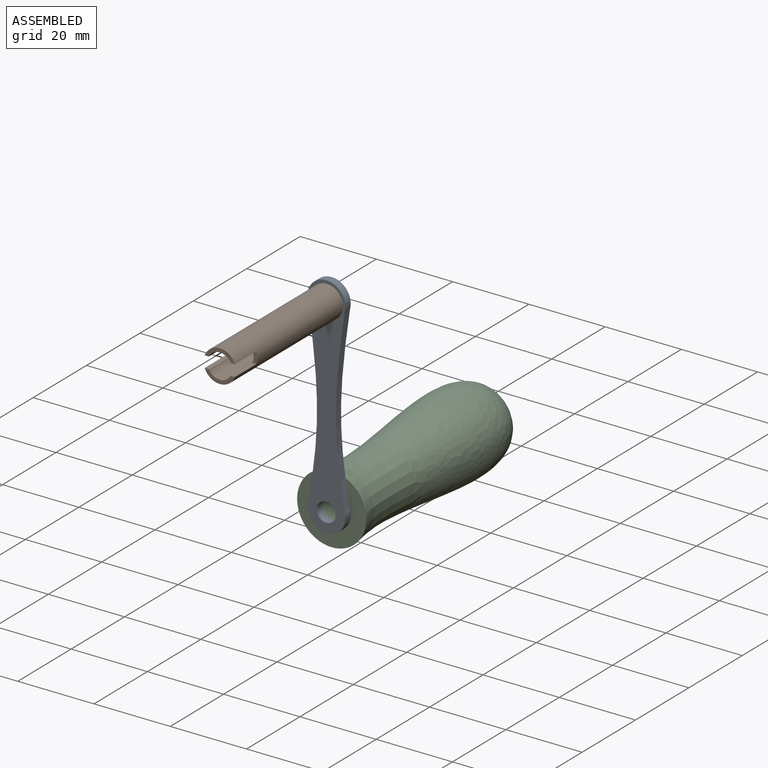
[diagram: assembled view]
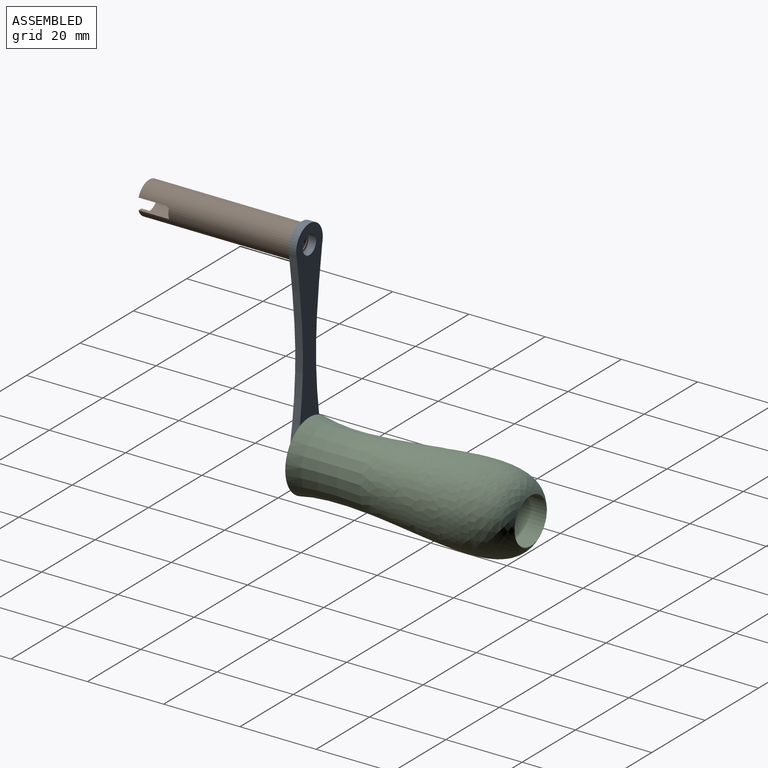
[diagram: assembled view, second angle]
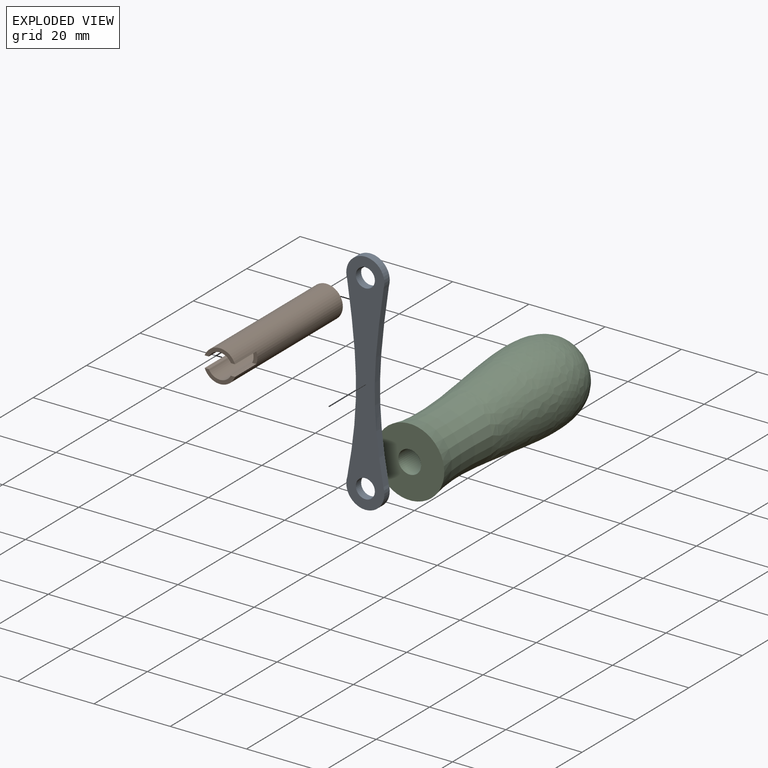
[diagram: exploded view]
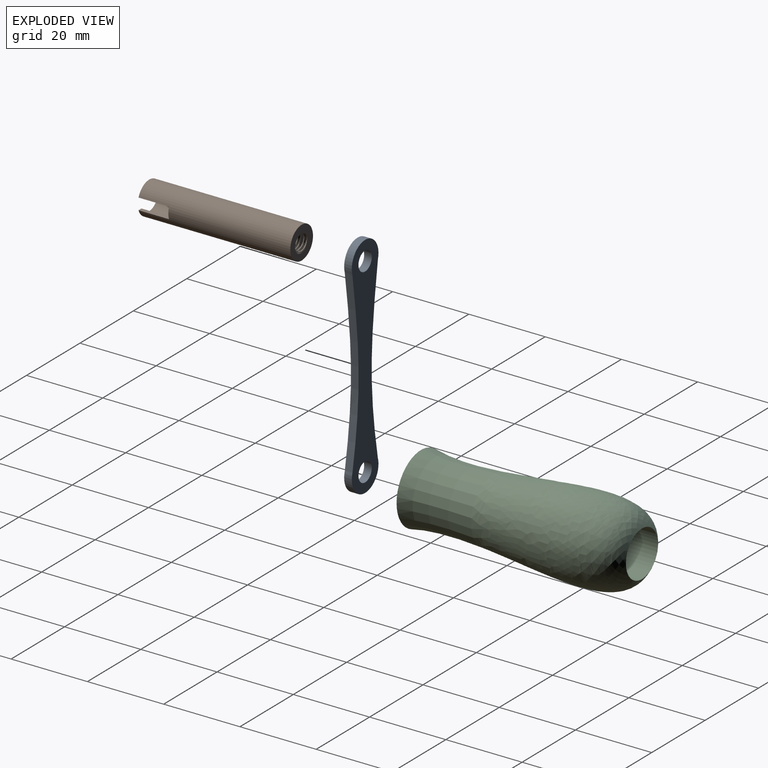
[diagram: exploded view, second angle]
ASSEMBLY  parts=3 mates=2
PART A: 8 faces, bbox 10x2x60 mm
  f0: cylinder r=5mm len=10mm, axis (0,1,0), area 37.3mm2, adj f1,f4,f6,f7
  f1: extruded ~46.95x2.33mm, area 94.5mm2, adj f0,f2,f6,f7
  f2: cylinder r=5mm len=10mm, axis (0,1,0), area 37.9mm2, adj f1,f4,f6,f7
  f3: cylinder r=2.5mm len=5mm, axis (0,1,0), area 31.4mm2, adj f6,f7
  f4: extruded ~46.95x2.33mm, area 94.5mm2, adj f0,f2,f6,f7
  f5: cylinder r=2.5mm len=5mm, axis (0,1,0), area 31.4mm2, adj f6,f7
  f6: plane 60x10mm, normal (0,-1,0), area 377.3mm2, adj f0,f1,f2,f3,f4,f5
  f7: plane 60x10mm, normal (0,1,0), area 377.3mm2, adj f0,f1,f2,f3,f4,f5
PART B: 17 faces, bbox 8.7x40.5x8.7 mm
  f0: plane 4.8x4.79mm, normal (0,1,0), area 16.6mm2, adj f13,f14,f15,f16
  f1: plane 7.95x2.75mm, normal (0,-1,0), area 8.7mm2, adj f2,f5,f8,f11
  f2: cylinder r=4.25mm len=40mm, axis (0,1,0), area 1019.1mm2, adj f1,f3,f4,f7,f8,f9,f10,f11
  f3: plane 7.95x2.75mm, normal (0,-1,0), area 8.7mm2, adj f2,f5,f9,f10
  f4: plane 8.73x8.73mm, normal (0,1,0), area 40.2mm2, adj f2,f13,f14,f15,f16
  f5: cylinder r=3.25mm len=15mm, axis (0,-1,0), area 256.4mm2, adj f1,f3,f6,f7,f8,f9,f10,f11
  f6: plane 6.5x6.5mm, normal (0,-1,0), area 33.2mm2, adj f5
  f7: plane 3x1.37mm, normal (0,-1,0), area 3.1mm2, adj f2,f5,f8,f9
  f8: plane 8x1.09mm, normal (0,0,-1), area 8.7mm2, adj f1,f2,f5,f7
  f9: plane 8x1.09mm, normal (0,0,1), area 8.7mm2, adj f2,f3,f5,f7
  f10: plane 8x1.09mm, normal (0,0,1), area 8.7mm2, adj f2,f3,f5,f12
  f11: plane 8x1.09mm, normal (0,0,-1), area 8.7mm2, adj f1,f2,f5,f12
  f12: plane 3x1.37mm, normal (0,-1,0), area 3.1mm2, adj f2,f5,f10,f11
  f13: bspline ~15.58x5.85mm, area 136.7mm2, adj f0,f4,f15,f16
  f14: bspline ~15.58x5.85mm, area 136.8mm2, adj f0,f4,f15,f16
  f15: bspline ~15.3x5.93mm, area 34.9mm2, adj f0,f4,f13,f14
  f16: cylinder r=2.1mm len=15mm, axis (0,-1,0), area 74mm2, adj f0,f4,f13,f14
PART C: 5 faces, bbox 21.3x58x21.3 mm
  f0: plane 18.16x18.16mm, normal (0,1,0), area 230.7mm2, adj f1,f4
  f1: revolved ~58x21.32mm, area 3451.8mm2, adj f0,f2
  f2: cylinder r=6mm len=12mm, axis (0,-1,0), area 301.6mm2, adj f1,f3
  f3: plane 12x12mm, normal (0,-1,0), area 84.8mm2, adj f2,f4
  f4: cylinder r=3mm len=50mm, axis (0,-1,0), area 942.5mm2, adj f0,f3
PLACE A t=(-19.62,-11.5,-3.26)mm
PLACE B t=(-19.55,-13.5,-3.33)mm
PLACE C rot(axis=(0.71,0,0.71),180deg) t=(-19.62,-11.5,-53.26)mm
MATE fastened A.f0 <-> B.f4  axis (0,-1,0) through (-19.62,-13.5,-3.26)mm
MATE revolute C.f2 <-> A.f2  axis (0,-1,0) through (-19.62,-11.5,-53.26)mm
